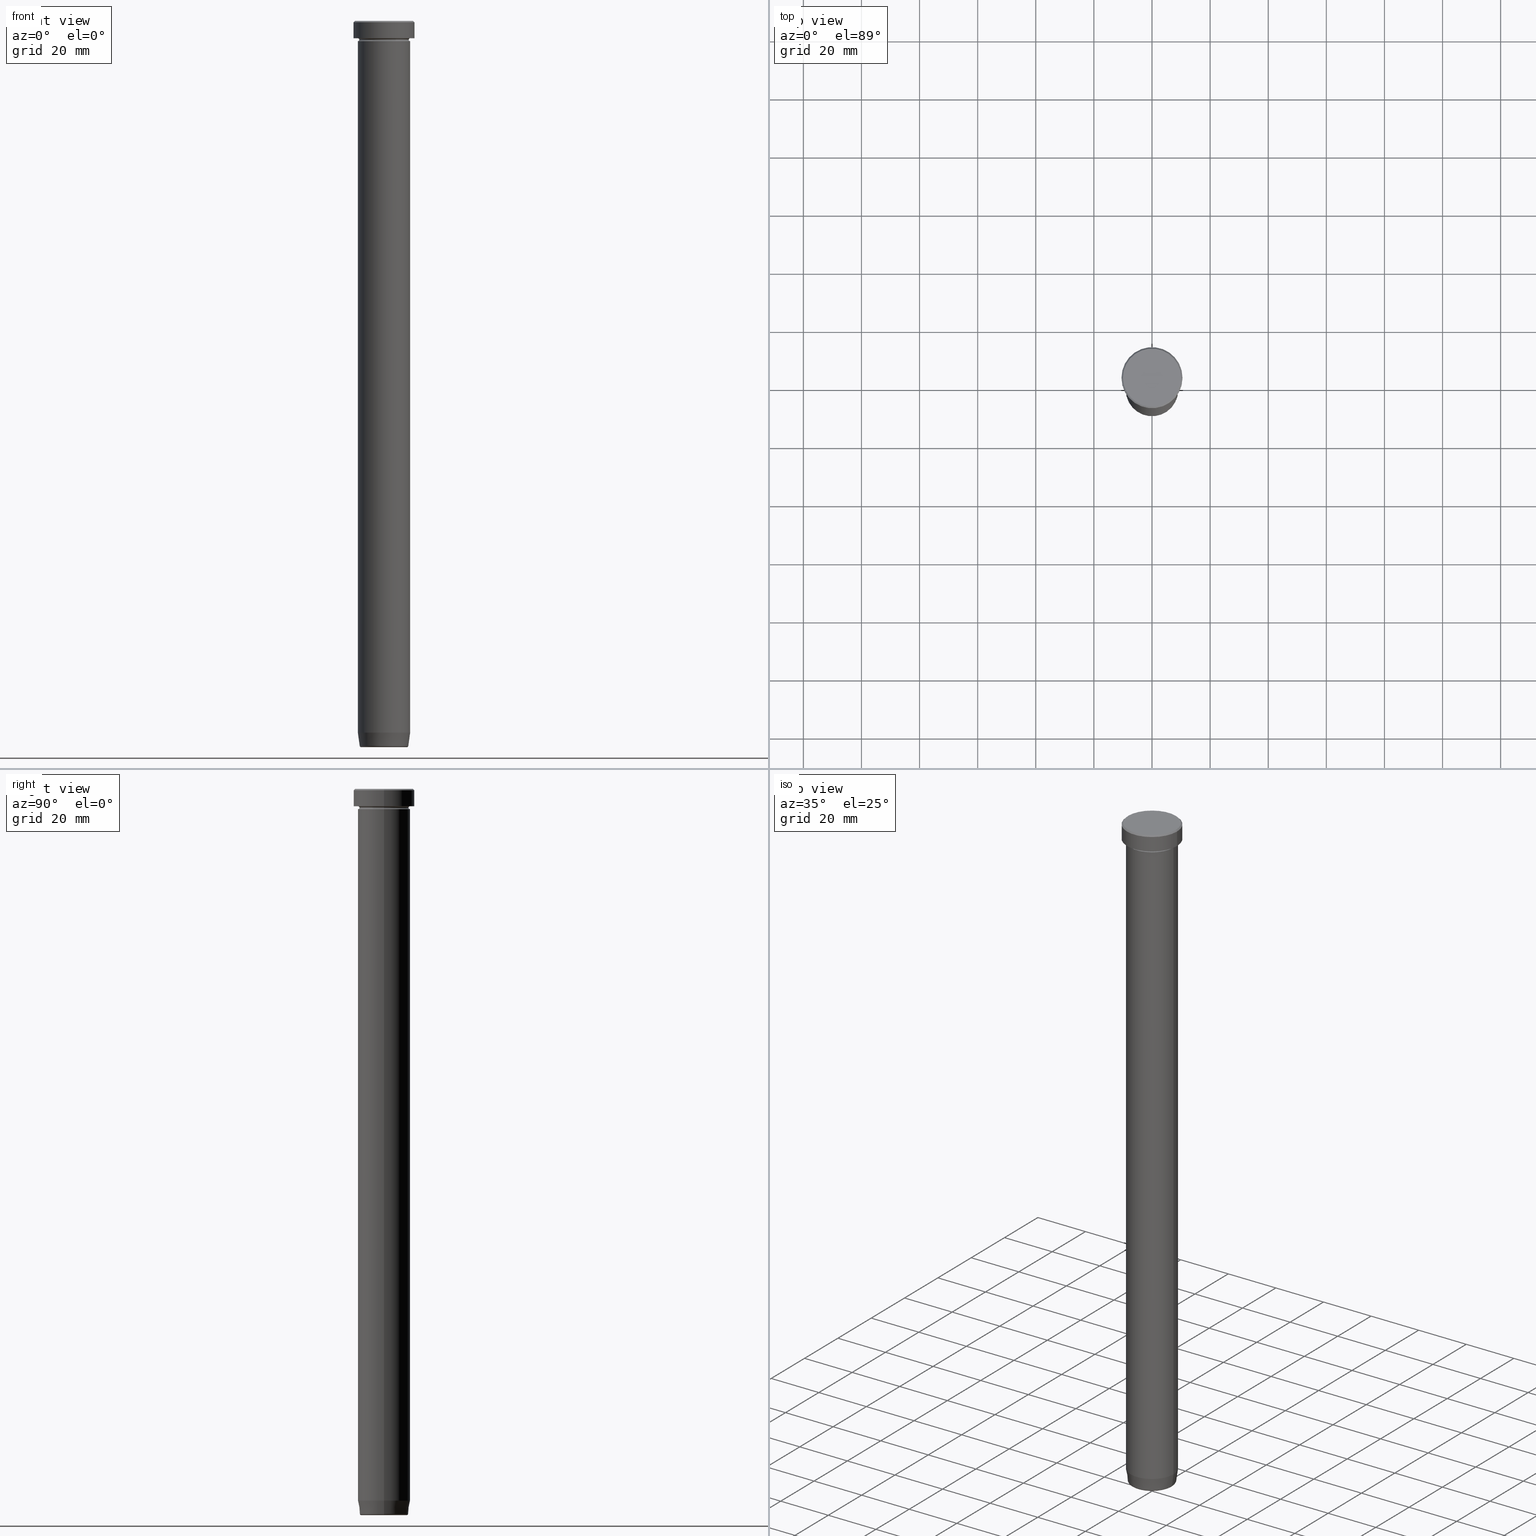
[diagram: canonical four-view strip — front | top / right | iso, engineering-drawing reading convention]
A machine part, canonical four-view strip (front | top / right | iso — engineering-drawing reading convention). The complete STEP part file that produces these views, byte-faithful:
ISO-10303-21;
HEADER;
FILE_DESCRIPTION (( 'STEP AP203' ),
    '1' );
FILE_NAME ('974f.STEP',
    '2024-01-02T19:32:08',
    ( '' ),
    ( '' ),
    'SwSTEP 2.0',
    'SolidWorks 2019',
    '' );
FILE_SCHEMA (( 'CONFIG_CONTROL_DESIGN' ));
ENDSEC;

DATA;
#1 = DIRECTION ( 'NONE',  ( 1.000000000000000000, 0.000000000000000000, 0.000000000000000000 ) ) ;
#2 = CARTESIAN_POINT ( 'NONE',  ( 0.000000000000000000, 0.000000000000000000, 0.000000000000000000 ) ) ;
#3 = CARTESIAN_POINT ( 'NONE',  ( 9.000000000000000000, 0.000000000000000000, -22.00000000000000000 ) ) ;
#4 = ORIENTED_EDGE ( 'NONE', *, *, #473, .F. ) ;
#5 = AXIS2_PLACEMENT_3D ( 'NONE', #91, #48, #421 ) ;
#6 = DIRECTION ( 'NONE',  ( -1.000000000000000000, 1.224646799147353454E-16, 0.000000000000000000 ) ) ;
#7 = DATE_AND_TIME ( #100, #336 ) ;
#8 = CARTESIAN_POINT ( 'NONE',  ( 0.000000000000000000, 0.000000000000000000, -22.00000000000000000 ) ) ;
#9 = ORIENTED_EDGE ( 'NONE', *, *, #454, .F. ) ;
#10 = ADVANCED_FACE ( 'NONE', ( #503 ), #215, .T. ) ;
#11 = PLANE ( 'NONE',  #289 ) ;
#12 = EDGE_LOOP ( 'NONE', ( #468, #563, #377, #515 ) ) ;
#13 = DIRECTION ( 'NONE',  ( -0.000000000000000000, -0.000000000000000000, 1.000000000000000000 ) ) ;
#14 = ORIENTED_EDGE ( 'NONE', *, *, #599, .F. ) ;
#15 = CARTESIAN_POINT ( 'NONE',  ( -9.000000000000000000, 1.102182119232617714E-15, -22.00000000000000000 ) ) ;
#16 = VERTEX_POINT ( 'NONE', #259 ) ;
#17 = CARTESIAN_POINT ( 'NONE',  ( 0.000000000000000000, 0.000000000000000000, -249.5695865504800111 ) ) ;
#18 = TOROIDAL_SURFACE ( 'NONE', #347, 9.000000000000000000, 0.5000000000000000000 ) ;
#19 = EDGE_LOOP ( 'NONE', ( #460, #570, #553, #420 ) ) ;
#20 = ADVANCED_FACE ( 'NONE', ( #352 ), #84, .T. ) ;
#21 = LINE ( 'NONE', #217, #299 ) ;
#22 = CARTESIAN_POINT ( 'NONE',  ( 0.000000000000000000, 0.000000000000000000, -245.0000000000000000 ) ) ;
#23 = ORIENTED_EDGE ( 'NONE', *, *, #211, .T. ) ;
#24 = DIRECTION ( 'NONE',  ( -0.000000000000000000, -0.000000000000000000, 1.000000000000000000 ) ) ;
#25 = SECURITY_CLASSIFICATION_LEVEL ( 'unclassified' ) ;
#26 = CIRCLE ( 'NONE', #485, 10.50000000000000000 ) ;
#27 = AXIS2_PLACEMENT_3D ( 'NONE', #115, #295, #483 ) ;
#28 = CARTESIAN_POINT ( 'NONE',  ( -10.00000000000000178, 0.000000000000000000, 0.000000000000000000 ) ) ;
#29 = CALENDAR_DATE ( 2024, 2, 1 ) ;
#30 = ADVANCED_FACE ( 'NONE', ( #446 ), #73, .T. ) ;
#31 = DIRECTION ( 'NONE',  ( -1.000000000000000000, 0.000000000000000000, 0.000000000000000000 ) ) ;
#32 = VERTEX_POINT ( 'NONE', #126 ) ;
#33 = DIRECTION ( 'NONE',  ( -0.7071067811865450192, 0.000000000000000000, -0.7071067811865500152 ) ) ;
#34 = AXIS2_PLACEMENT_3D ( 'NONE', #386, #67, #159 ) ;
#35 = CIRCLE ( 'NONE', #598, 8.357786491950713881 ) ;
#36 = ADVANCED_FACE ( 'NONE', ( #592 ), #440, .T. ) ;
#37 = CARTESIAN_POINT ( 'NONE',  ( 9.000000000000000000, 0.000000000000000000, -245.0000000000000000 ) ) ;
#38 = LINE ( 'NONE', #539, #382 ) ;
#39 = ORIENTED_EDGE ( 'NONE', *, *, #554, .F. ) ;
#40 = DIRECTION ( 'NONE',  ( 0.000000000000000000, 0.000000000000000000, -1.000000000000000000 ) ) ;
#41 = EDGE_LOOP ( 'NONE', ( #51, #39, #502, #574 ) ) ;
#42 = EDGE_CURVE ( 'NONE', #133, #448, #402, .T. ) ;
#43 = DIRECTION ( 'NONE',  ( 1.000000000000000000, 0.000000000000000000, 0.000000000000000000 ) ) ;
#44 = CIRCLE ( 'NONE', #27, 10.00000000000000178 ) ;
#45 = CARTESIAN_POINT ( 'NONE',  ( -9.000000000000000000, 1.102182119232617714E-15, -22.00000000000000000 ) ) ;
#46 = DIRECTION ( 'NONE',  ( -0.000000000000000000, -0.000000000000000000, 1.000000000000000000 ) ) ;
#47 = CARTESIAN_POINT ( 'NONE',  ( -9.000000000000000000, 1.102182119232617714E-15, -245.0000000000000000 ) ) ;
#48 = DIRECTION ( 'NONE',  ( 0.000000000000000000, 0.000000000000000000, -1.000000000000000000 ) ) ;
#49 = FACE_OUTER_BOUND ( 'NONE', #308, .T. ) ;
#50 = APPROVAL_ROLE ( '' ) ;
#51 = ORIENTED_EDGE ( 'NONE', *, *, #109, .F. ) ;
#52 = DIRECTION ( 'NONE',  ( -1.000000000000000000, 0.000000000000000000, 0.000000000000000000 ) ) ;
#53 = ORIENTED_EDGE ( 'NONE', *, *, #252, .T. ) ;
#54 = TOROIDAL_SURFACE ( 'NONE', #80, 7.862652457579924814, 0.5000000000000000000 ) ;
#55 = LOCAL_TIME ( 20, 32, 8.000000000000000000, #432 ) ;
#56 = FACE_OUTER_BOUND ( 'NONE', #342, .T. ) ;
#57 = ORIENTED_EDGE ( 'NONE', *, *, #509, .T. ) ;
#58 = DIRECTION ( 'NONE',  ( -1.000000000000000000, 1.224646799147353454E-16, 0.000000000000000000 ) ) ;
#59 = ORIENTED_EDGE ( 'NONE', *, *, #490, .T. ) ;
#60 = DIRECTION ( 'NONE',  ( 0.000000000000000000, -0.000000000000000000, 1.000000000000000000 ) ) ;
#61 = ORIENTED_EDGE ( 'NONE', *, *, #398, .T. ) ;
#62 = DIRECTION ( 'NONE',  ( -0.000000000000000000, -0.000000000000000000, 1.000000000000000000 ) ) ;
#63 = CIRCLE ( 'NONE', #205, 9.000000000000000000 ) ;
#64 = DIRECTION ( 'NONE',  ( -0.000000000000000000, -0.000000000000000000, 1.000000000000000000 ) ) ;
#65 = CARTESIAN_POINT ( 'NONE',  ( 7.862652457579924814, 0.000000000000000000, -249.5000000000000000 ) ) ;
#66 = EDGE_CURVE ( 'NONE', #339, #204, #254, .T. ) ;
#67 = DIRECTION ( 'NONE',  ( -0.000000000000000000, -0.000000000000000000, 1.000000000000000000 ) ) ;
#68 = APPROVAL_DATE_TIME ( #121, #303 ) ;
#69 = ORIENTED_EDGE ( 'NONE', *, *, #42, .F. ) ;
#70 = TOROIDAL_SURFACE ( 'NONE', #442, 9.000000000000000000, 0.5000000000000000000 ) ;
#71 = SHAPE_DEFINITION_REPRESENTATION ( #116, #168 ) ;
#72 = DIRECTION ( 'NONE',  ( 0.000000000000000000, 0.000000000000000000, -1.000000000000000000 ) ) ;
#73 = TOROIDAL_SURFACE ( 'NONE', #351, 7.862652457579924814, 0.5000000000000000000 ) ;
#74 = CLOSED_SHELL ( 'NONE', ( #461, #543, #409, #20, #395, #147, #10, #229, #447, #36, #107, #272, #75 ) ) ;
#75 = ADVANCED_FACE ( 'NONE', ( #495 ), #268, .T. ) ;
#76 = CARTESIAN_POINT ( 'NONE',  ( -10.50000000000000000, 1.285879139104720831E-15, -0.5000000000000023315 ) ) ;
#77 = DIRECTION ( 'NONE',  ( -0.000000000000000000, -0.000000000000000000, 1.000000000000000000 ) ) ;
#78 = CARTESIAN_POINT ( 'NONE',  ( 0.000000000000000000, 0.000000000000000000, -245.0000000000000000 ) ) ;
#79 = APPROVAL ( #230, 'NEUR�EN�' ) ;
#80 = AXIS2_PLACEMENT_3D ( 'NONE', #293, #394, #482 ) ;
#81 = AXIS2_PLACEMENT_3D ( 'NONE', #571, #154, #329 ) ;
#82 = CYLINDRICAL_SURFACE ( 'NONE', #496, 10.50000000000000000 ) ;
#83 = VERTEX_POINT ( 'NONE', #76 ) ;
#84 = CYLINDRICAL_SURFACE ( 'NONE', #146, 9.000000000000000000 ) ;
#85 = CARTESIAN_POINT ( 'NONE',  ( 0.000000000000000000, 0.000000000000000000, -6.000000000000000000 ) ) ;
#86 = CARTESIAN_POINT ( 'NONE',  ( -9.000000000000000000, 1.102182119232617714E-15, 0.000000000000000000 ) ) ;
#87 = PERSON_AND_ORGANIZATION ( #309, #547 ) ;
#88 = CARTESIAN_POINT ( 'NONE',  ( 10.00000000000000178, 1.255262969126037241E-15, 0.000000000000000000 ) ) ;
#89 = EDGE_LOOP ( 'NONE', ( #208, #246 ) ) ;
#90 = AXIS2_PLACEMENT_3D ( 'NONE', #437, #170, #346 ) ;
#91 = CARTESIAN_POINT ( 'NONE',  ( 0.000000000000000000, 0.000000000000000000, -0.5000000000000023315 ) ) ;
#92 = CIRCLE ( 'NONE', #81, 8.499999999999998224 ) ;
#93 = DIRECTION ( 'NONE',  ( -0.1391731009600659097, 1.704378926181561528E-17, 0.9902680687415702510 ) ) ;
#94 = LINE ( 'NONE', #141, #464 ) ;
#95 = CARTESIAN_POINT ( 'NONE',  ( 0.000000000000000000, 0.000000000000000000, -22.00000000000000000 ) ) ;
#96 = EDGE_CURVE ( 'NONE', #184, #102, #565, .T. ) ;
#97 = DATE_AND_TIME ( #281, #193 ) ;
#98 = DIRECTION ( 'NONE',  ( 1.000000000000000000, 0.000000000000000000, 0.000000000000000000 ) ) ;
#99 = DIRECTION ( 'NONE',  ( -1.000000000000000000, 0.000000000000000000, -0.000000000000000000 ) ) ;
#100 = CALENDAR_DATE ( 2024, 2, 1 ) ;
#101 = ORIENTED_EDGE ( 'NONE', *, *, #96, .T. ) ;
#102 = VERTEX_POINT ( 'NONE', #37 ) ;
#103 = AXIS2_PLACEMENT_3D ( 'NONE', #505, #371, #144 ) ;
#104 = APPROVAL_PERSON_ORGANIZATION ( #533, #303, #474 ) ;
#105 = APPROVAL_DATE_TIME ( #361, #79 ) ;
#106 = ORIENTED_EDGE ( 'NONE', *, *, #360, .T. ) ;
#107 = ADVANCED_FACE ( 'NONE', ( #218 ), #411, .F. ) ;
#108 = DIRECTION ( 'NONE',  ( -0.000000000000000000, -0.000000000000000000, 1.000000000000000000 ) ) ;
#109 = EDGE_CURVE ( 'NONE', #158, #16, #363, .T. ) ;
#110 = DIRECTION ( 'NONE',  ( -0.000000000000000000, -0.000000000000000000, 1.000000000000000000 ) ) ;
#111 = AXIS2_PLACEMENT_3D ( 'NONE', #472, #60, #206 ) ;
#112 = AXIS2_PLACEMENT_3D ( 'NONE', #391, #162, #340 ) ;
#113 = DIRECTION ( 'NONE',  ( -0.000000000000000000, -0.000000000000000000, 1.000000000000000000 ) ) ;
#114 = DIRECTION ( 'NONE',  ( 1.000000000000000000, 0.000000000000000000, 0.000000000000000000 ) ) ;
#115 = CARTESIAN_POINT ( 'NONE',  ( 0.000000000000000000, 0.000000000000000000, 0.000000000000000000 ) ) ;
#116 = PRODUCT_DEFINITION_SHAPE ( 'NONE', 'NONE',  #387 ) ;
#117 = LINE ( 'NONE', #579, #238 ) ;
#118 = CALENDAR_DATE ( 2024, 2, 1 ) ;
#119 = ORIENTED_EDGE ( 'NONE', *, *, #96, .F. ) ;
#120 = PLANE ( 'NONE',  #111 ) ;
#121 = DATE_AND_TIME ( #118, #161 ) ;
#122 = CIRCLE ( 'NONE', #103, 10.50000000000000000 ) ;
#123 = CARTESIAN_POINT ( 'NONE',  ( 0.000000000000000000, 0.000000000000000000, -250.0000000000000000 ) ) ;
#124 = EDGE_CURVE ( 'NONE', #530, #32, #589, .T. ) ;
#125 = DIRECTION ( 'NONE',  ( 0.000000000000000000, 0.000000000000000000, -1.000000000000000000 ) ) ;
#126 = CARTESIAN_POINT ( 'NONE',  ( -8.357786491950713881, 1.062857883382530116E-15, -249.5695865504800111 ) ) ;
#127 =( NAMED_UNIT ( * ) PLANE_ANGLE_UNIT ( ) SI_UNIT ( $, .RADIAN. ) );
#128 = DIRECTION ( 'NONE',  ( 1.000000000000000000, 0.000000000000000000, 0.000000000000000000 ) ) ;
#129 = CIRCLE ( 'NONE', #5, 10.50000000000000000 ) ;
#130 =( NAMED_UNIT ( * ) SI_UNIT ( $, .STERADIAN. ) SOLID_ANGLE_UNIT ( ) );
#131 = CIRCLE ( 'NONE', #216, 10.00000000000000178 ) ;
#132 = DIRECTION ( 'NONE',  ( 1.000000000000000000, 0.000000000000000000, 0.000000000000000000 ) ) ;
#133 = VERTEX_POINT ( 'NONE', #45 ) ;
#134 = ADVANCED_FACE ( 'NONE', ( #185 ), #142, .T. ) ;
#135 = DIRECTION ( 'NONE',  ( 0.000000000000000000, 0.000000000000000000, -1.000000000000000000 ) ) ;
#136 = DIRECTION ( 'NONE',  ( 0.000000000000000000, 0.000000000000000000, 1.000000000000000000 ) ) ;
#137 = DIRECTION ( 'NONE',  ( -0.000000000000000000, -0.000000000000000000, 1.000000000000000000 ) ) ;
#138 = COORDINATED_UNIVERSAL_TIME_OFFSET ( 1, 0, .AHEAD. ) ;
#139 = VECTOR ( 'NONE', #93, 1000.000000000000000 ) ;
#140 = AXIS2_PLACEMENT_3D ( 'NONE', #379, #450, #98 ) ;
#141 = CARTESIAN_POINT ( 'NONE',  ( 10.50000000000000000, 0.000000000000000000, 0.000000000000000000 ) ) ;
#142 = CYLINDRICAL_SURFACE ( 'NONE', #559, 9.000000000000000000 ) ;
#143 = EDGE_LOOP ( 'NONE', ( #287, #61 ) ) ;
#144 = DIRECTION ( 'NONE',  ( 1.000000000000000000, 0.000000000000000000, 0.000000000000000000 ) ) ;
#145 = ORIENTED_EDGE ( 'NONE', *, *, #66, .F. ) ;
#146 = AXIS2_PLACEMENT_3D ( 'NONE', #397, #595, #174 ) ;
#147 = ADVANCED_FACE ( 'NONE', ( #374 ), #323, .T. ) ;
#148 = CARTESIAN_POINT ( 'NONE',  ( 0.000000000000000000, 0.000000000000000000, -6.500000000000000888 ) ) ;
#149 = EDGE_LOOP ( 'NONE', ( #106, #243, #261, #463 ) ) ;
#150 = CARTESIAN_POINT ( 'NONE',  ( -9.000000000000000000, 0.000000000000000000, -6.000000000000000000 ) ) ;
#151 = ORIENTED_EDGE ( 'NONE', *, *, #244, .T. ) ;
#152 = CIRCLE ( 'NONE', #370, 9.000000000000000000 ) ;
#153 = PRODUCT_DEFINITION_FORMATION_WITH_SPECIFIED_SOURCE ( 'LIBOVOLN�', '', #488, .NOT_KNOWN. ) ;
#154 = DIRECTION ( 'NONE',  ( -0.000000000000000000, -0.000000000000000000, 1.000000000000000000 ) ) ;
#155 = VERTEX_POINT ( 'NONE', #378 ) ;
#156 = APPLICATION_CONTEXT ( 'configuration controlled 3d designs of mechanical parts and assemblies' ) ;
#157 = ORIENTED_EDGE ( 'NONE', *, *, #383, .F. ) ;
#158 = VERTEX_POINT ( 'NONE', #88 ) ;
#159 = DIRECTION ( 'NONE',  ( 1.000000000000000000, 0.000000000000000000, 0.000000000000000000 ) ) ;
#160 = AXIS2_PLACEMENT_3D ( 'NONE', #327, #269, #43 ) ;
#161 = LOCAL_TIME ( 20, 32, 8.000000000000000000, #580 ) ;
#162 = DIRECTION ( 'NONE',  ( -0.000000000000000000, -0.000000000000000000, 1.000000000000000000 ) ) ;
#163 = FACE_OUTER_BOUND ( 'NONE', #239, .T. ) ;
#164 = EDGE_CURVE ( 'NONE', #32, #184, #552, .T. ) ;
#165 = DIRECTION ( 'NONE',  ( 1.000000000000000000, 0.000000000000000000, 0.000000000000000000 ) ) ;
#166 = PERSON_AND_ORGANIZATION ( #309, #547 ) ;
#167 = AXIS2_PLACEMENT_3D ( 'NONE', #493, #72, #31 ) ;
#168 = ADVANCED_BREP_SHAPE_REPRESENTATION ( '974f', ( #542, #338, #300 ), #478 ) ;
#169 = EDGE_CURVE ( 'NONE', #133, #537, #288, .T. ) ;
#170 = DIRECTION ( 'NONE',  ( 0.000000000000000000, 0.000000000000000000, -1.000000000000000000 ) ) ;
#171 = AXIS2_PLACEMENT_3D ( 'NONE', #564, #449, #318 ) ;
#172 = CIRCLE ( 'NONE', #577, 9.000000000000000000 ) ;
#173 = DIRECTION ( 'NONE',  ( 0.000000000000000000, 0.000000000000000000, -1.000000000000000000 ) ) ;
#174 = DIRECTION ( 'NONE',  ( 1.000000000000000000, 0.000000000000000000, 0.000000000000000000 ) ) ;
#175 = DIRECTION ( 'NONE',  ( -0.000000000000000000, -0.000000000000000000, 1.000000000000000000 ) ) ;
#176 =( LENGTH_UNIT ( ) NAMED_UNIT ( * ) SI_UNIT ( .MILLI., .METRE. ) );
#177 = CARTESIAN_POINT ( 'NONE',  ( 0.000000000000000000, 0.000000000000000000, 0.000000000000000000 ) ) ;
#178 = ORIENTED_EDGE ( 'NONE', *, *, #509, .F. ) ;
#179 = EDGE_CURVE ( 'NONE', #412, #339, #476, .T. ) ;
#180 = DIRECTION ( 'NONE',  ( 0.000000000000000000, -0.000000000000000000, 1.000000000000000000 ) ) ;
#181 = AXIS2_PLACEMENT_3D ( 'NONE', #207, #209, #114 ) ;
#182 = APPROVAL_ROLE ( '' ) ;
#183 = CIRCLE ( 'NONE', #292, 0.5000000000000004441 ) ;
#184 = VERTEX_POINT ( 'NONE', #47 ) ;
#185 = FACE_OUTER_BOUND ( 'NONE', #241, .T. ) ;
#186 = COORDINATED_UNIVERSAL_TIME_OFFSET ( 1, 0, .AHEAD. ) ;
#187 = ORIENTED_EDGE ( 'NONE', *, *, #398, .F. ) ;
#188 = DIRECTION ( 'NONE',  ( 1.224646799147353207E-16, 1.000000000000000000, 0.000000000000000000 ) ) ;
#189 = ADVANCED_FACE ( 'NONE', ( #49 ), #11, .F. ) ;
#190 = CARTESIAN_POINT ( 'NONE',  ( 10.00000000000000178, 1.224646799147353454E-15, 0.000000000000000000 ) ) ;
#191 = AXIS2_PLACEMENT_3D ( 'NONE', #510, #517, #276 ) ;
#192 = CIRCLE ( 'NONE', #250, 7.862652457579924814 ) ;
#193 = LOCAL_TIME ( 20, 32, 8.000000000000000000, #186 ) ;
#194 = EDGE_LOOP ( 'NONE', ( #4, #471 ) ) ;
#195 = CARTESIAN_POINT ( 'NONE',  ( -7.862652457579924814, 9.628972164983326593E-16, -249.5000000000000000 ) ) ;
#196 = PERSON_AND_ORGANIZATION ( #309, #547 ) ;
#197 = CARTESIAN_POINT ( 'NONE',  ( 9.000000000000000000, 0.000000000000000000, -6.500000000000000888 ) ) ;
#198 = VERTEX_POINT ( 'NONE', #458 ) ;
#199 = DIRECTION ( 'NONE',  ( -0.000000000000000000, -0.000000000000000000, 1.000000000000000000 ) ) ;
#200 = ORIENTED_EDGE ( 'NONE', *, *, #594, .F. ) ;
#201 = PERSON_AND_ORGANIZATION_ROLE ( 'creator' ) ;
#202 = ORIENTED_EDGE ( 'NONE', *, *, #469, .F. ) ;
#203 = DIRECTION ( 'NONE',  ( 0.000000000000000000, -1.000000000000000000, 0.000000000000000000 ) ) ;
#204 = VERTEX_POINT ( 'NONE', #150 ) ;
#205 = AXIS2_PLACEMENT_3D ( 'NONE', #320, #199, #52 ) ;
#206 = DIRECTION ( 'NONE',  ( 1.000000000000000000, 0.000000000000000000, 0.000000000000000000 ) ) ;
#207 = CARTESIAN_POINT ( 'NONE',  ( 0.000000000000000000, 0.000000000000000000, 0.000000000000000000 ) ) ;
#208 = ORIENTED_EDGE ( 'NONE', *, *, #554, .T. ) ;
#209 = DIRECTION ( 'NONE',  ( -0.000000000000000000, -0.000000000000000000, 1.000000000000000000 ) ) ;
#210 = AXIS2_PLACEMENT_3D ( 'NONE', #331, #429, #434 ) ;
#211 = EDGE_CURVE ( 'NONE', #410, #467, #441, .T. ) ;
#212 = CARTESIAN_POINT ( 'NONE',  ( 0.000000000000000000, 0.000000000000000000, -6.500000000000000888 ) ) ;
#213 = DIRECTION ( 'NONE',  ( -0.000000000000000000, -0.000000000000000000, 1.000000000000000000 ) ) ;
#214 = CIRCLE ( 'NONE', #256, 7.862652457579924814 ) ;
#215 = PLANE ( 'NONE',  #388 ) ;
#216 = AXIS2_PLACEMENT_3D ( 'NONE', #526, #113, #480 ) ;
#217 = CARTESIAN_POINT ( 'NONE',  ( 8.297295826488038983, 0.000000000000000000, -250.0000000000000000 ) ) ;
#218 = FACE_OUTER_BOUND ( 'NONE', #296, .T. ) ;
#219 = DIRECTION ( 'NONE',  ( -0.000000000000000000, -0.000000000000000000, 1.000000000000000000 ) ) ;
#220 = ADVANCED_FACE ( 'NONE', ( #56 ), #335, .T. ) ;
#221 = VERTEX_POINT ( 'NONE', #225 ) ;
#222 = CALENDAR_DATE ( 2024, 2, 1 ) ;
#223 = CARTESIAN_POINT ( 'NONE',  ( 9.000000000000000000, 0.000000000000000000, 0.000000000000000000 ) ) ;
#224 = VERTEX_POINT ( 'NONE', #28 ) ;
#225 = CARTESIAN_POINT ( 'NONE',  ( 9.000000000000000000, 0.000000000000000000, -7.000000000000000000 ) ) ;
#226 = AXIS2_PLACEMENT_3D ( 'NONE', #8, #558, #368 ) ;
#227 = CIRCLE ( 'NONE', #112, 9.000000000000000000 ) ;
#228 = PRODUCT_RELATED_PRODUCT_CATEGORY ( 'detail', '', ( #488 ) ) ;
#229 = ADVANCED_FACE ( 'NONE', ( #389 ), #583, .T. ) ;
#230 = APPROVAL_STATUS ( 'not_yet_approved' ) ;
#231 = EDGE_LOOP ( 'NONE', ( #390, #445 ) ) ;
#232 = DIRECTION ( 'NONE',  ( -1.224646799147353207E-16, 1.000000000000000000, 0.000000000000000000 ) ) ;
#233 = AXIS2_PLACEMENT_3D ( 'NONE', #504, #555, #1 ) ;
#234 = EDGE_LOOP ( 'NONE', ( #69, #456, #151, #157 ) ) ;
#235 = CC_DESIGN_DATE_AND_TIME_ASSIGNMENT ( #7, #274, ( #387 ) ) ;
#236 = CARTESIAN_POINT ( 'NONE',  ( 8.357786491950713881, 0.000000000000000000, -249.5695865504800111 ) ) ;
#237 = PERSON_AND_ORGANIZATION ( #309, #547 ) ;
#238 = VECTOR ( 'NONE', #24, 1000.000000000000000 ) ;
#239 = EDGE_LOOP ( 'NONE', ( #385, #245, #584, #414 ) ) ;
#240 = PERSON_AND_ORGANIZATION_ROLE ( 'classification_officer' ) ;
#241 = EDGE_LOOP ( 'NONE', ( #426, #345, #518, #366 ) ) ;
#242 = CARTESIAN_POINT ( 'NONE',  ( -9.000000000000000000, 1.102182119232617714E-15, -6.500000000000000888 ) ) ;
#243 = ORIENTED_EDGE ( 'NONE', *, *, #164, .T. ) ;
#244 = EDGE_CURVE ( 'NONE', #537, #221, #117, .T. ) ;
#245 = ORIENTED_EDGE ( 'NONE', *, *, #179, .T. ) ;
#246 = ORIENTED_EDGE ( 'NONE', *, *, #585, .T. ) ;
#247 = FACE_OUTER_BOUND ( 'NONE', #149, .T. ) ;
#248 = ORIENTED_EDGE ( 'NONE', *, *, #500, .T. ) ;
#249 = CARTESIAN_POINT ( 'NONE',  ( 0.000000000000000000, 0.000000000000000000, -6.500000000000000888 ) ) ;
#250 = AXIS2_PLACEMENT_3D ( 'NONE', #405, #173, #132 ) ;
#251 = DIRECTION ( 'NONE',  ( -1.000000000000000000, 0.000000000000000000, 0.000000000000000000 ) ) ;
#252 = EDGE_CURVE ( 'NONE', #32, #511, #35, .T. ) ;
#253 = DIRECTION ( 'NONE',  ( 0.000000000000000000, 0.000000000000000000, -1.000000000000000000 ) ) ;
#254 = CIRCLE ( 'NONE', #481, 0.5000000000000004441 ) ;
#255 = PERSON_AND_ORGANIZATION ( #309, #547 ) ;
#256 = AXIS2_PLACEMENT_3D ( 'NONE', #123, #40, #591 ) ;
#257 = DIRECTION ( 'NONE',  ( 0.000000000000000000, 0.000000000000000000, -1.000000000000000000 ) ) ;
#258 = CC_DESIGN_PERSON_AND_ORGANIZATION_ASSIGNMENT ( #237, #513, ( #488 ) ) ;
#259 = CARTESIAN_POINT ( 'NONE',  ( 10.50000000000000000, 0.000000000000000000, -0.5000000000000023315 ) ) ;
#260 = FACE_BOUND ( 'NONE', #231, .T. ) ;
#261 = ORIENTED_EDGE ( 'NONE', *, *, #285, .F. ) ;
#262 = CARTESIAN_POINT ( 'NONE',  ( 0.000000000000000000, 10.50000000000000000, -6.000000000000000000 ) ) ;
#263 = AXIS2_PLACEMENT_3D ( 'NONE', #148, #512, #453 ) ;
#264 = CIRCLE ( 'NONE', #590, 0.5000000000000004441 ) ;
#265 = DIRECTION ( 'NONE',  ( -0.000000000000000000, -0.000000000000000000, 1.000000000000000000 ) ) ;
#266 = DIRECTION ( 'NONE',  ( -0.000000000000000000, -0.000000000000000000, 1.000000000000000000 ) ) ;
#267 = ORIENTED_EDGE ( 'NONE', *, *, #531, .F. ) ;
#268 = CONICAL_SURFACE ( 'NONE', #167, 10.00000000000000178, 0.7853981633974447263 ) ;
#269 = DIRECTION ( 'NONE',  ( -0.000000000000000000, -0.000000000000000000, 1.000000000000000000 ) ) ;
#270 = PERSON_AND_ORGANIZATION_ROLE ( 'creator' ) ;
#271 = CC_DESIGN_DATE_AND_TIME_ASSIGNMENT ( #284, #344, ( #358 ) ) ;
#272 = ADVANCED_FACE ( 'NONE', ( #163 ), #18, .F. ) ;
#273 = CONICAL_SURFACE ( 'NONE', #516, 8.297295826488038983, 0.1396263401595468356 ) ;
#274 = DATE_TIME_ROLE ( 'creation_date' ) ;
#275 = ORIENTED_EDGE ( 'NONE', *, *, #479, .T. ) ;
#276 = DIRECTION ( 'NONE',  ( 1.000000000000000000, 0.000000000000000000, 0.000000000000000000 ) ) ;
#277 = COORDINATED_UNIVERSAL_TIME_OFFSET ( 1, 0, .AHEAD. ) ;
#278 = FACE_OUTER_BOUND ( 'NONE', #325, .T. ) ;
#279 = DIRECTION ( 'NONE',  ( 0.7071067811865450192, 8.659560562354902043E-17, -0.7071067811865500152 ) ) ;
#280 = DIRECTION ( 'NONE',  ( 1.000000000000000000, 0.000000000000000000, 0.000000000000000000 ) ) ;
#281 = CALENDAR_DATE ( 2024, 2, 1 ) ;
#282 = VECTOR ( 'NONE', #266, 1000.000000000000000 ) ;
#283 = CARTESIAN_POINT ( 'NONE',  ( 10.50000000000000000, 0.000000000000000000, -6.000000000000000000 ) ) ;
#284 = DATE_AND_TIME ( #29, #55 ) ;
#285 = EDGE_CURVE ( 'NONE', #102, #184, #152, .T. ) ;
#286 = CARTESIAN_POINT ( 'NONE',  ( 0.000000000000000000, 0.000000000000000000, -249.5695865504800111 ) ) ;
#287 = ORIENTED_EDGE ( 'NONE', *, *, #413, .T. ) ;
#288 = CIRCLE ( 'NONE', #191, 9.000000000000000000 ) ;
#289 = AXIS2_PLACEMENT_3D ( 'NONE', #95, #135, #99 ) ;
#290 = AXIS2_PLACEMENT_3D ( 'NONE', #249, #425, #333 ) ;
#291 = CARTESIAN_POINT ( 'NONE',  ( 0.000000000000000000, 0.000000000000000000, -6.500000000000000888 ) ) ;
#292 = AXIS2_PLACEMENT_3D ( 'NONE', #65, #203, #384 ) ;
#293 = CARTESIAN_POINT ( 'NONE',  ( 0.000000000000000000, 0.000000000000000000, -249.5000000000000000 ) ) ;
#294 = EDGE_LOOP ( 'NONE', ( #514, #23, #326, #248 ) ) ;
#295 = DIRECTION ( 'NONE',  ( -0.000000000000000000, -0.000000000000000000, 1.000000000000000000 ) ) ;
#296 = EDGE_LOOP ( 'NONE', ( #178, #435, #315, #357 ) ) ;
#297 = EDGE_CURVE ( 'NONE', #221, #448, #328, .T. ) ;
#298 = FACE_OUTER_BOUND ( 'NONE', #557, .T. ) ;
#299 = VECTOR ( 'NONE', #403, 1000.000000000000000 ) ;
#300 = AXIS2_PLACEMENT_3D ( 'NONE', #538, #136, #459 ) ;
#301 = CARTESIAN_POINT ( 'NONE',  ( 0.000000000000000000, 0.000000000000000000, 0.000000000000000000 ) ) ;
#302 = LINE ( 'NONE', #489, #282 ) ;
#303 = APPROVAL ( #381, 'NEUR�EN�' ) ;
#304 = DIRECTION ( 'NONE',  ( 1.000000000000000000, 0.000000000000000000, 0.000000000000000000 ) ) ;
#305 = APPLICATION_CONTEXT ( 'configuration controlled 3d designs of mechanical parts and assemblies' ) ;
#306 = FACE_OUTER_BOUND ( 'NONE', #417, .T. ) ;
#307 = EDGE_CURVE ( 'NONE', #204, #198, #569, .T. ) ;
#308 = EDGE_LOOP ( 'NONE', ( #312, #520 ) ) ;
#309 = PERSON ( 'NEUR�EN�', 'NEUR�EN�', 'NEUR�EN�', ('NEUR�EN�'), ('NEUR�EN�'), ('NEUR�EN�') ) ;
#310 = CARTESIAN_POINT ( 'NONE',  ( 8.499999999999998224, 0.000000000000000000, -6.500000000000000888 ) ) ;
#311 = APPROVAL_PERSON_ORGANIZATION ( #196, #79, #182 ) ;
#312 = ORIENTED_EDGE ( 'NONE', *, *, #575, .T. ) ;
#313 = CC_DESIGN_PERSON_AND_ORGANIZATION_ASSIGNMENT ( #166, #341, ( #153 ) ) ;
#314 = CARTESIAN_POINT ( 'NONE',  ( 0.000000000000000000, 0.000000000000000000, -7.000000000000000000 ) ) ;
#315 = ORIENTED_EDGE ( 'NONE', *, *, #469, .T. ) ;
#316 = APPLICATION_PROTOCOL_DEFINITION ( 'international standard', 'config_control_design', 1994, #305 ) ;
#317 = CARTESIAN_POINT ( 'NONE',  ( 9.000000000000000000, 1.102182119232617714E-15, -6.500000000000000888 ) ) ;
#318 = DIRECTION ( 'NONE',  ( -1.000000000000000000, 0.000000000000000000, -0.000000000000000000 ) ) ;
#319 = CIRCLE ( 'NONE', #226, 9.000000000000000000 ) ;
#320 = CARTESIAN_POINT ( 'NONE',  ( 0.000000000000000000, 0.000000000000000000, -6.000000000000000000 ) ) ;
#321 = DIRECTION ( 'NONE',  ( 1.224646799147353207E-16, 1.000000000000000000, 0.000000000000000000 ) ) ;
#322 = ORIENTED_EDGE ( 'NONE', *, *, #164, .F. ) ;
#323 = PLANE ( 'NONE',  #171 ) ;
#324 = ADVANCED_FACE ( 'NONE', ( #521 ), #54, .T. ) ;
#325 = EDGE_LOOP ( 'NONE', ( #597, #59, #548, #145 ) ) ;
#326 = ORIENTED_EDGE ( 'NONE', *, *, #519, .T. ) ;
#327 = CARTESIAN_POINT ( 'NONE',  ( 0.000000000000000000, 0.000000000000000000, -250.0000000000000000 ) ) ;
#328 = CIRCLE ( 'NONE', #34, 9.000000000000000000 ) ;
#329 = DIRECTION ( 'NONE',  ( 1.000000000000000000, 0.000000000000000000, 0.000000000000000000 ) ) ;
#330 = ORIENTED_EDGE ( 'NONE', *, *, #585, .F. ) ;
#331 = CARTESIAN_POINT ( 'NONE',  ( 0.000000000000000000, 0.000000000000000000, -6.000000000000000000 ) ) ;
#332 = EDGE_LOOP ( 'NONE', ( #581, #101, #424, #267 ) ) ;
#333 = DIRECTION ( 'NONE',  ( -1.000000000000000000, 0.000000000000000000, 0.000000000000000000 ) ) ;
#334 = APPROVAL ( #556, 'NEUR�EN�' ) ;
#335 = CONICAL_SURFACE ( 'NONE', #160, 8.297295826488038983, 0.1396263401595468356 ) ;
#336 = LOCAL_TIME ( 20, 32, 8.000000000000000000, #138 ) ;
#337 = CARTESIAN_POINT ( 'NONE',  ( -8.499999999999998224, 1.071565949253933927E-15, -6.500000000000000888 ) ) ;
#338 = MANIFOLD_SOLID_BREP ( 'Zaoblit4', #365 ) ;
#339 = VERTEX_POINT ( 'NONE', #337 ) ;
#340 = DIRECTION ( 'NONE',  ( 1.000000000000000000, 0.000000000000000000, 0.000000000000000000 ) ) ;
#341 = PERSON_AND_ORGANIZATION_ROLE ( 'design_supplier' ) ;
#342 = EDGE_LOOP ( 'NONE', ( #322, #53, #566, #119 ) ) ;
#343 = ADVANCED_FACE ( 'NONE', ( #247 ), #273, .T. ) ;
#344 = DATE_TIME_ROLE ( 'classification_date' ) ;
#345 = ORIENTED_EDGE ( 'NONE', *, *, #506, .T. ) ;
#346 = DIRECTION ( 'NONE',  ( -1.000000000000000000, 0.000000000000000000, 0.000000000000000000 ) ) ;
#347 = AXIS2_PLACEMENT_3D ( 'NONE', #291, #253, #484 ) ;
#348 = ORIENTED_EDGE ( 'NONE', *, *, #519, .F. ) ;
#349 = DIRECTION ( 'NONE',  ( -0.000000000000000000, -0.000000000000000000, 1.000000000000000000 ) ) ;
#350 = ADVANCED_FACE ( 'NONE', ( #532 ), #120, .F. ) ;
#351 = AXIS2_PLACEMENT_3D ( 'NONE', #406, #359, #549 ) ;
#352 = FACE_OUTER_BOUND ( 'NONE', #19, .T. ) ;
#353 = DIRECTION ( 'NONE',  ( 1.000000000000000000, 0.000000000000000000, 0.000000000000000000 ) ) ;
#354 = UNCERTAINTY_MEASURE_WITH_UNIT (LENGTH_MEASURE( 1.000000000000000082E-05 ), #176, 'distance_accuracy_value', 'NONE');
#355 = FACE_OUTER_BOUND ( 'NONE', #332, .T. ) ;
#356 = CIRCLE ( 'NONE', #477, 8.357786491950713881 ) ;
#357 = ORIENTED_EDGE ( 'NONE', *, *, #297, .T. ) ;
#358 = SECURITY_CLASSIFICATION ( '', '', #25 ) ;
#359 = DIRECTION ( 'NONE',  ( -0.000000000000000000, -0.000000000000000000, 1.000000000000000000 ) ) ;
#360 = EDGE_CURVE ( 'NONE', #511, #32, #356, .T. ) ;
#361 = DATE_AND_TIME ( #222, #487 ) ;
#362 = DIRECTION ( 'NONE',  ( -0.000000000000000000, -0.000000000000000000, 1.000000000000000000 ) ) ;
#363 = LINE ( 'NONE', #190, #396 ) ;
#364 = PERSON_AND_ORGANIZATION ( #309, #547 ) ;
#365 = CLOSED_SHELL ( 'NONE', ( #324, #343, #134, #189, #393, #220, #350, #30 ) ) ;
#366 = ORIENTED_EDGE ( 'NONE', *, *, #423, .F. ) ;
#367 = EDGE_CURVE ( 'NONE', #511, #102, #21, .T. ) ;
#368 = DIRECTION ( 'NONE',  ( 1.000000000000000000, 0.000000000000000000, 0.000000000000000000 ) ) ;
#369 = DIRECTION ( 'NONE',  ( 1.000000000000000000, 0.000000000000000000, 0.000000000000000000 ) ) ;
#370 = AXIS2_PLACEMENT_3D ( 'NONE', #22, #64, #576 ) ;
#371 = DIRECTION ( 'NONE',  ( 0.000000000000000000, 0.000000000000000000, -1.000000000000000000 ) ) ;
#372 = ORIENTED_EDGE ( 'NONE', *, *, #211, .F. ) ;
#373 = EDGE_CURVE ( 'NONE', #224, #83, #38, .T. ) ;
#374 = FACE_OUTER_BOUND ( 'NONE', #194, .T. ) ;
#375 = CARTESIAN_POINT ( 'NONE',  ( -9.000000000000000000, 1.102182119232617714E-15, 0.000000000000000000 ) ) ;
#376 = AXIS2_PLACEMENT_3D ( 'NONE', #301, #540, #438 ) ;
#377 = ORIENTED_EDGE ( 'NONE', *, *, #594, .T. ) ;
#378 = CARTESIAN_POINT ( 'NONE',  ( 7.862652457579924814, 0.000000000000000000, -250.0000000000000000 ) ) ;
#379 = CARTESIAN_POINT ( 'NONE',  ( 0.000000000000000000, 0.000000000000000000, -22.00000000000000000 ) ) ;
#380 = ORIENTED_EDGE ( 'NONE', *, *, #124, .T. ) ;
#381 = APPROVAL_STATUS ( 'not_yet_approved' ) ;
#382 = VECTOR ( 'NONE', #33, 1000.000000000000000 ) ;
#383 = EDGE_CURVE ( 'NONE', #448, #221, #172, .T. ) ;
#384 = DIRECTION ( 'NONE',  ( 0.000000000000000000, 0.000000000000000000, -1.000000000000000000 ) ) ;
#385 = ORIENTED_EDGE ( 'NONE', *, *, #490, .F. ) ;
#386 = CARTESIAN_POINT ( 'NONE',  ( 0.000000000000000000, 0.000000000000000000, -7.000000000000000000 ) ) ;
#387 = PRODUCT_DEFINITION ( 'NEZN�M�', '', #153, #498 ) ;
#388 = AXIS2_PLACEMENT_3D ( 'NONE', #534, #180, #304 ) ;
#389 = FACE_OUTER_BOUND ( 'NONE', #294, .T. ) ;
#390 = ORIENTED_EDGE ( 'NONE', *, *, #307, .T. ) ;
#391 = CARTESIAN_POINT ( 'NONE',  ( 0.000000000000000000, 0.000000000000000000, -22.00000000000000000 ) ) ;
#392 = CONICAL_SURFACE ( 'NONE', #90, 10.00000000000000178, 0.7853981633974447263 ) ;
#393 = ADVANCED_FACE ( 'NONE', ( #355 ), #546, .T. ) ;
#394 = DIRECTION ( 'NONE',  ( -0.000000000000000000, -0.000000000000000000, 1.000000000000000000 ) ) ;
#395 = ADVANCED_FACE ( 'NONE', ( #407 ), #82, .T. ) ;
#396 = VECTOR ( 'NONE', #279, 1000.000000000000000 ) ;
#397 = CARTESIAN_POINT ( 'NONE',  ( 0.000000000000000000, 0.000000000000000000, 0.000000000000000000 ) ) ;
#398 = EDGE_CURVE ( 'NONE', #530, #155, #214, .T. ) ;
#399 = CARTESIAN_POINT ( 'NONE',  ( -10.50000000000000000, 1.285879139104720831E-15, -6.000000000000000000 ) ) ;
#400 = CIRCLE ( 'NONE', #140, 9.000000000000000000 ) ;
#401 = CC_DESIGN_SECURITY_CLASSIFICATION ( #358, ( #153 ) ) ;
#402 = LINE ( 'NONE', #86, #404 ) ;
#403 = DIRECTION ( 'NONE',  ( 0.1391731009600659097, 0.000000000000000000, 0.9902680687415702510 ) ) ;
#404 = VECTOR ( 'NONE', #436, 1000.000000000000000 ) ;
#405 = CARTESIAN_POINT ( 'NONE',  ( 0.000000000000000000, 0.000000000000000000, -250.0000000000000000 ) ) ;
#406 = CARTESIAN_POINT ( 'NONE',  ( 0.000000000000000000, 0.000000000000000000, -249.5000000000000000 ) ) ;
#407 = FACE_OUTER_BOUND ( 'NONE', #596, .T. ) ;
#408 = VECTOR ( 'NONE', #349, 1000.000000000000000 ) ;
#409 = ADVANCED_FACE ( 'NONE', ( #541 ), #70, .F. ) ;
#410 = VERTEX_POINT ( 'NONE', #399 ) ;
#411 = TOROIDAL_SURFACE ( 'NONE', #233, 9.000000000000000000, 0.5000000000000000000 ) ;
#412 = VERTEX_POINT ( 'NONE', #310 ) ;
#413 = EDGE_CURVE ( 'NONE', #155, #530, #192, .T. ) ;
#414 = ORIENTED_EDGE ( 'NONE', *, *, #522, .F. ) ;
#415 = AXIS2_PLACEMENT_3D ( 'NONE', #317, #232, #452 ) ;
#416 = ORIENTED_EDGE ( 'NONE', *, *, #383, .T. ) ;
#417 = EDGE_LOOP ( 'NONE', ( #9, #372 ) ) ;
#418 = CC_DESIGN_PERSON_AND_ORGANIZATION_ASSIGNMENT ( #255, #201, ( #153 ) ) ;
#419 = CARTESIAN_POINT ( 'NONE',  ( 0.000000000000000000, 0.000000000000000000, -6.000000000000000000 ) ) ;
#420 = ORIENTED_EDGE ( 'NONE', *, *, #244, .F. ) ;
#421 = DIRECTION ( 'NONE',  ( 1.000000000000000000, 0.000000000000000000, 0.000000000000000000 ) ) ;
#422 = ORIENTED_EDGE ( 'NONE', *, *, #109, .T. ) ;
#423 = EDGE_CURVE ( 'NONE', #102, #568, #492, .T. ) ;
#424 = ORIENTED_EDGE ( 'NONE', *, *, #423, .T. ) ;
#425 = DIRECTION ( 'NONE',  ( 0.000000000000000000, 0.000000000000000000, -1.000000000000000000 ) ) ;
#426 = ORIENTED_EDGE ( 'NONE', *, *, #285, .T. ) ;
#427 = AXIS2_PLACEMENT_3D ( 'NONE', #262, #257, #501 ) ;
#428 = CC_DESIGN_APPROVAL ( #303, ( #358 ) ) ;
#429 = DIRECTION ( 'NONE',  ( -0.000000000000000000, -0.000000000000000000, 1.000000000000000000 ) ) ;
#430 = CARTESIAN_POINT ( 'NONE',  ( 9.000000000000000000, 0.000000000000000000, -22.00000000000000000 ) ) ;
#431 = EDGE_CURVE ( 'NONE', #410, #83, #302, .T. ) ;
#432 = COORDINATED_UNIVERSAL_TIME_OFFSET ( 1, 0, .AHEAD. ) ;
#433 = AXIS2_PLACEMENT_3D ( 'NONE', #242, #188, #58 ) ;
#434 = DIRECTION ( 'NONE',  ( -1.000000000000000000, 0.000000000000000000, 0.000000000000000000 ) ) ;
#435 = ORIENTED_EDGE ( 'NONE', *, *, #179, .F. ) ;
#436 = DIRECTION ( 'NONE',  ( -0.000000000000000000, -0.000000000000000000, 1.000000000000000000 ) ) ;
#437 = CARTESIAN_POINT ( 'NONE',  ( 0.000000000000000000, 0.000000000000000000, 0.000000000000000000 ) ) ;
#438 = DIRECTION ( 'NONE',  ( 1.000000000000000000, 0.000000000000000000, 0.000000000000000000 ) ) ;
#439 = APPLICATION_PROTOCOL_DEFINITION ( 'international standard', 'config_control_design', 1994, #156 ) ;
#440 = CYLINDRICAL_SURFACE ( 'NONE', #376, 9.000000000000000000 ) ;
#441 = CIRCLE ( 'NONE', #523, 10.50000000000000000 ) ;
#442 = AXIS2_PLACEMENT_3D ( 'NONE', #212, #219, #128 ) ;
#443 = DIRECTION ( 'NONE',  ( 1.000000000000000000, 0.000000000000000000, 0.000000000000000000 ) ) ;
#444 = CARTESIAN_POINT ( 'NONE',  ( -9.000000000000000000, 1.102182119232617714E-15, -7.000000000000000000 ) ) ;
#445 = ORIENTED_EDGE ( 'NONE', *, *, #522, .T. ) ;
#446 = FACE_OUTER_BOUND ( 'NONE', #12, .T. ) ;
#447 = ADVANCED_FACE ( 'NONE', ( #260, #306 ), #494, .T. ) ;
#448 = VERTEX_POINT ( 'NONE', #444 ) ;
#449 = DIRECTION ( 'NONE',  ( 0.000000000000000000, 0.000000000000000000, -1.000000000000000000 ) ) ;
#450 = DIRECTION ( 'NONE',  ( -0.000000000000000000, -0.000000000000000000, 1.000000000000000000 ) ) ;
#451 = VECTOR ( 'NONE', #46, 1000.000000000000000 ) ;
#452 = DIRECTION ( 'NONE',  ( -1.000000000000000000, -1.224646799147353454E-16, 0.000000000000000000 ) ) ;
#453 = DIRECTION ( 'NONE',  ( 1.000000000000000000, 0.000000000000000000, 0.000000000000000000 ) ) ;
#454 = EDGE_CURVE ( 'NONE', #467, #410, #26, .T. ) ;
#455 = MECHANICAL_CONTEXT ( 'NONE', #156, 'mechanical' ) ;
#456 = ORIENTED_EDGE ( 'NONE', *, *, #169, .T. ) ;
#457 = LINE ( 'NONE', #375, #451 ) ;
#458 = CARTESIAN_POINT ( 'NONE',  ( 9.000000000000000000, 1.102182119232617714E-15, -6.000000000000000000 ) ) ;
#459 = DIRECTION ( 'NONE',  ( 1.000000000000000000, 0.000000000000000000, 0.000000000000000000 ) ) ;
#460 = ORIENTED_EDGE ( 'NONE', *, *, #473, .T. ) ;
#461 = ADVANCED_FACE ( 'NONE', ( #298 ), #392, .T. ) ;
#462 = DIRECTION ( 'NONE',  ( 0.000000000000000000, 0.000000000000000000, -1.000000000000000000 ) ) ;
#463 = ORIENTED_EDGE ( 'NONE', *, *, #367, .F. ) ;
#464 = VECTOR ( 'NONE', #13, 1000.000000000000000 ) ;
#465 = DIRECTION ( 'NONE',  ( -0.000000000000000000, -0.000000000000000000, 1.000000000000000000 ) ) ;
#466 = CC_DESIGN_APPROVAL ( #334, ( #387 ) ) ;
#467 = VERTEX_POINT ( 'NONE', #283 ) ;
#468 = ORIENTED_EDGE ( 'NONE', *, *, #124, .F. ) ;
#469 = EDGE_CURVE ( 'NONE', #412, #221, #264, .T. ) ;
#470 = ORIENTED_EDGE ( 'NONE', *, *, #454, .T. ) ;
#471 = ORIENTED_EDGE ( 'NONE', *, *, #169, .F. ) ;
#472 = CARTESIAN_POINT ( 'NONE',  ( 0.000000000000000000, 2.081899558550500043E-14, -250.0000000000000000 ) ) ;
#473 = EDGE_CURVE ( 'NONE', #537, #133, #319, .T. ) ;
#474 = APPROVAL_ROLE ( '' ) ;
#475 = CARTESIAN_POINT ( 'NONE',  ( 0.000000000000000000, 0.000000000000000000, -250.0000000000000000 ) ) ;
#476 = CIRCLE ( 'NONE', #263, 8.499999999999998224 ) ;
#477 = AXIS2_PLACEMENT_3D ( 'NONE', #286, #62, #251 ) ;
#478 =( GEOMETRIC_REPRESENTATION_CONTEXT ( 3 ) GLOBAL_UNCERTAINTY_ASSIGNED_CONTEXT ( ( #354 ) ) GLOBAL_UNIT_ASSIGNED_CONTEXT ( ( #176, #127, #130 ) ) REPRESENTATION_CONTEXT ( 'NONE', 'WORKASPACE' ) );
#479 = EDGE_CURVE ( 'NONE', #83, #16, #122, .T. ) ;
#480 = DIRECTION ( 'NONE',  ( 1.000000000000000000, 0.000000000000000000, 0.000000000000000000 ) ) ;
#481 = AXIS2_PLACEMENT_3D ( 'NONE', #588, #491, #125 ) ;
#482 = DIRECTION ( 'NONE',  ( 1.000000000000000000, 0.000000000000000000, 0.000000000000000000 ) ) ;
#483 = DIRECTION ( 'NONE',  ( 1.000000000000000000, 0.000000000000000000, 0.000000000000000000 ) ) ;
#484 = DIRECTION ( 'NONE',  ( -1.000000000000000000, 0.000000000000000000, 0.000000000000000000 ) ) ;
#485 = AXIS2_PLACEMENT_3D ( 'NONE', #85, #362, #551 ) ;
#486 = CC_DESIGN_PERSON_AND_ORGANIZATION_ASSIGNMENT ( #529, #240, ( #358 ) ) ;
#487 = LOCAL_TIME ( 20, 32, 8.000000000000000000, #277 ) ;
#488 = PRODUCT ( '974f', '974f', '', ( #455 ) ) ;
#489 = CARTESIAN_POINT ( 'NONE',  ( -10.50000000000000000, 1.285879139104720831E-15, 0.000000000000000000 ) ) ;
#490 = EDGE_CURVE ( 'NONE', #412, #198, #524, .T. ) ;
#491 = DIRECTION ( 'NONE',  ( -0.000000000000000000, -1.000000000000000000, -0.000000000000000000 ) ) ;
#492 = LINE ( 'NONE', #223, #408 ) ;
#493 = CARTESIAN_POINT ( 'NONE',  ( 0.000000000000000000, 0.000000000000000000, 0.000000000000000000 ) ) ;
#494 = PLANE ( 'NONE',  #427 ) ;
#495 = FACE_OUTER_BOUND ( 'NONE', #41, .T. ) ;
#496 = AXIS2_PLACEMENT_3D ( 'NONE', #177, #175, #353 ) ;
#497 = DIRECTION ( 'NONE',  ( 1.000000000000000000, 0.000000000000000000, 0.000000000000000000 ) ) ;
#498 = DESIGN_CONTEXT ( 'detailed design', #305, 'design' ) ;
#499 = EDGE_LOOP ( 'NONE', ( #14, #57, #416, #202 ) ) ;
#500 = EDGE_CURVE ( 'NONE', #16, #83, #129, .T. ) ;
#501 = DIRECTION ( 'NONE',  ( -1.000000000000000000, 0.000000000000000000, -0.000000000000000000 ) ) ;
#502 = ORIENTED_EDGE ( 'NONE', *, *, #373, .T. ) ;
#503 = FACE_OUTER_BOUND ( 'NONE', #89, .T. ) ;
#504 = CARTESIAN_POINT ( 'NONE',  ( 0.000000000000000000, 0.000000000000000000, -6.500000000000000888 ) ) ;
#505 = CARTESIAN_POINT ( 'NONE',  ( 0.000000000000000000, 0.000000000000000000, -0.5000000000000023315 ) ) ;
#506 = EDGE_CURVE ( 'NONE', #184, #544, #457, .T. ) ;
#507 = CARTESIAN_POINT ( 'NONE',  ( -8.297295826488038983, 1.016125677548726948E-15, -250.0000000000000000 ) ) ;
#508 = CARTESIAN_POINT ( 'NONE',  ( -7.862652457579924814, 9.932154320153875890E-16, -250.0000000000000000 ) ) ;
#509 = EDGE_CURVE ( 'NONE', #339, #448, #536, .T. ) ;
#510 = CARTESIAN_POINT ( 'NONE',  ( 0.000000000000000000, 0.000000000000000000, -22.00000000000000000 ) ) ;
#511 = VERTEX_POINT ( 'NONE', #236 ) ;
#512 = DIRECTION ( 'NONE',  ( -0.000000000000000000, -0.000000000000000000, 1.000000000000000000 ) ) ;
#513 = PERSON_AND_ORGANIZATION_ROLE ( 'design_owner' ) ;
#514 = ORIENTED_EDGE ( 'NONE', *, *, #431, .F. ) ;
#515 = ORIENTED_EDGE ( 'NONE', *, *, #252, .F. ) ;
#516 = AXIS2_PLACEMENT_3D ( 'NONE', #475, #108, #165 ) ;
#517 = DIRECTION ( 'NONE',  ( -0.000000000000000000, -0.000000000000000000, 1.000000000000000000 ) ) ;
#518 = ORIENTED_EDGE ( 'NONE', *, *, #575, .F. ) ;
#519 = EDGE_CURVE ( 'NONE', #467, #16, #94, .T. ) ;
#520 = ORIENTED_EDGE ( 'NONE', *, *, #531, .T. ) ;
#521 = FACE_OUTER_BOUND ( 'NONE', #561, .T. ) ;
#522 = EDGE_CURVE ( 'NONE', #198, #204, #63, .T. ) ;
#523 = AXIS2_PLACEMENT_3D ( 'NONE', #419, #465, #280 ) ;
#524 = CIRCLE ( 'NONE', #415, 0.5000000000000004441 ) ;
#525 = CC_DESIGN_APPROVAL ( #79, ( #153 ) ) ;
#526 = CARTESIAN_POINT ( 'NONE',  ( 0.000000000000000000, 0.000000000000000000, 0.000000000000000000 ) ) ;
#527 = CC_DESIGN_PERSON_AND_ORGANIZATION_ASSIGNMENT ( #364, #270, ( #387 ) ) ;
#528 = ORIENTED_EDGE ( 'NONE', *, *, #360, .F. ) ;
#529 = PERSON_AND_ORGANIZATION ( #309, #547 ) ;
#530 = VERTEX_POINT ( 'NONE', #508 ) ;
#531 = EDGE_CURVE ( 'NONE', #544, #568, #400, .T. ) ;
#532 = FACE_OUTER_BOUND ( 'NONE', #143, .T. ) ;
#533 = PERSON_AND_ORGANIZATION ( #309, #547 ) ;
#534 = CARTESIAN_POINT ( 'NONE',  ( 0.000000000000000000, 0.000000000000000000, 0.000000000000000000 ) ) ;
#535 = AXIS2_PLACEMENT_3D ( 'NONE', #195, #321, #6 ) ;
#536 = CIRCLE ( 'NONE', #433, 0.5000000000000004441 ) ;
#537 = VERTEX_POINT ( 'NONE', #3 ) ;
#538 = CARTESIAN_POINT ( 'NONE',  ( 0.000000000000000000, 0.000000000000000000, 0.000000000000000000 ) ) ;
#539 = CARTESIAN_POINT ( 'NONE',  ( -10.00000000000000178, 0.000000000000000000, 0.000000000000000000 ) ) ;
#540 = DIRECTION ( 'NONE',  ( -0.000000000000000000, -0.000000000000000000, 1.000000000000000000 ) ) ;
#541 = FACE_OUTER_BOUND ( 'NONE', #499, .T. ) ;
#542 = MANIFOLD_SOLID_BREP ( 'Zkosen�1', #74 ) ;
#543 = ADVANCED_FACE ( 'NONE', ( #278 ), #560, .F. ) ;
#544 = VERTEX_POINT ( 'NONE', #15 ) ;
#545 = AXIS2_PLACEMENT_3D ( 'NONE', #593, #77, #497 ) ;
#546 = CYLINDRICAL_SURFACE ( 'NONE', #545, 9.000000000000000000 ) ;
#547 = ORGANIZATION ( 'NEUR�EN�', 'NEUR�EN�', '' ) ;
#548 = ORIENTED_EDGE ( 'NONE', *, *, #307, .F. ) ;
#549 = DIRECTION ( 'NONE',  ( 1.000000000000000000, 0.000000000000000000, 0.000000000000000000 ) ) ;
#550 = APPROVAL_DATE_TIME ( #97, #334 ) ;
#551 = DIRECTION ( 'NONE',  ( 1.000000000000000000, 0.000000000000000000, 0.000000000000000000 ) ) ;
#552 = LINE ( 'NONE', #507, #139 ) ;
#553 = ORIENTED_EDGE ( 'NONE', *, *, #297, .F. ) ;
#554 = EDGE_CURVE ( 'NONE', #224, #158, #131, .T. ) ;
#555 = DIRECTION ( 'NONE',  ( -0.000000000000000000, -0.000000000000000000, 1.000000000000000000 ) ) ;
#556 = APPROVAL_STATUS ( 'not_yet_approved' ) ;
#557 = EDGE_LOOP ( 'NONE', ( #330, #422, #572, #582 ) ) ;
#558 = DIRECTION ( 'NONE',  ( -0.000000000000000000, -0.000000000000000000, 1.000000000000000000 ) ) ;
#559 = AXIS2_PLACEMENT_3D ( 'NONE', #2, #137, #369 ) ;
#560 = TOROIDAL_SURFACE ( 'NONE', #290, 9.000000000000000000, 0.5000000000000000000 ) ;
#561 = EDGE_LOOP ( 'NONE', ( #187, #380, #528, #200 ) ) ;
#562 = DIRECTION ( 'NONE',  ( 0.000000000000000000, -1.000000000000000000, 0.000000000000000000 ) ) ;
#563 = ORIENTED_EDGE ( 'NONE', *, *, #413, .F. ) ;
#564 = CARTESIAN_POINT ( 'NONE',  ( 0.000000000000000000, 9.000000000000000000, -22.00000000000000000 ) ) ;
#565 = CIRCLE ( 'NONE', #586, 9.000000000000000000 ) ;
#566 = ORIENTED_EDGE ( 'NONE', *, *, #367, .T. ) ;
#567 = ORIENTED_EDGE ( 'NONE', *, *, #431, .T. ) ;
#568 = VERTEX_POINT ( 'NONE', #430 ) ;
#569 = CIRCLE ( 'NONE', #210, 9.000000000000000000 ) ;
#570 = ORIENTED_EDGE ( 'NONE', *, *, #42, .T. ) ;
#571 = CARTESIAN_POINT ( 'NONE',  ( 0.000000000000000000, 0.000000000000000000, -6.500000000000000888 ) ) ;
#572 = ORIENTED_EDGE ( 'NONE', *, *, #479, .F. ) ;
#573 = DIRECTION ( 'NONE',  ( -1.000000000000000000, 0.000000000000000000, 0.000000000000000000 ) ) ;
#574 = ORIENTED_EDGE ( 'NONE', *, *, #500, .F. ) ;
#575 = EDGE_CURVE ( 'NONE', #568, #544, #227, .T. ) ;
#576 = DIRECTION ( 'NONE',  ( 1.000000000000000000, 0.000000000000000000, 0.000000000000000000 ) ) ;
#577 = AXIS2_PLACEMENT_3D ( 'NONE', #314, #213, #587 ) ;
#578 = APPROVAL_PERSON_ORGANIZATION ( #87, #334, #50 ) ;
#579 = CARTESIAN_POINT ( 'NONE',  ( 9.000000000000000000, 0.000000000000000000, 0.000000000000000000 ) ) ;
#580 = COORDINATED_UNIVERSAL_TIME_OFFSET ( 1, 0, .AHEAD. ) ;
#581 = ORIENTED_EDGE ( 'NONE', *, *, #506, .F. ) ;
#582 = ORIENTED_EDGE ( 'NONE', *, *, #373, .F. ) ;
#583 = CYLINDRICAL_SURFACE ( 'NONE', #181, 10.50000000000000000 ) ;
#584 = ORIENTED_EDGE ( 'NONE', *, *, #66, .T. ) ;
#585 = EDGE_CURVE ( 'NONE', #158, #224, #44, .T. ) ;
#586 = AXIS2_PLACEMENT_3D ( 'NONE', #78, #265, #443 ) ;
#587 = DIRECTION ( 'NONE',  ( 1.000000000000000000, 0.000000000000000000, 0.000000000000000000 ) ) ;
#588 = CARTESIAN_POINT ( 'NONE',  ( -9.000000000000000000, 0.000000000000000000, -6.500000000000000888 ) ) ;
#589 = CIRCLE ( 'NONE', #535, 0.5000000000000004441 ) ;
#590 = AXIS2_PLACEMENT_3D ( 'NONE', #197, #562, #462 ) ;
#591 = DIRECTION ( 'NONE',  ( 1.000000000000000000, 0.000000000000000000, 0.000000000000000000 ) ) ;
#592 = FACE_OUTER_BOUND ( 'NONE', #234, .T. ) ;
#593 = CARTESIAN_POINT ( 'NONE',  ( 0.000000000000000000, 0.000000000000000000, 0.000000000000000000 ) ) ;
#594 = EDGE_CURVE ( 'NONE', #155, #511, #183, .T. ) ;
#595 = DIRECTION ( 'NONE',  ( -0.000000000000000000, -0.000000000000000000, 1.000000000000000000 ) ) ;
#596 = EDGE_LOOP ( 'NONE', ( #470, #567, #275, #348 ) ) ;
#597 = ORIENTED_EDGE ( 'NONE', *, *, #599, .T. ) ;
#598 = AXIS2_PLACEMENT_3D ( 'NONE', #17, #110, #573 ) ;
#599 = EDGE_CURVE ( 'NONE', #339, #412, #92, .T. ) ;
ENDSEC;
END-ISO-10303-21;
